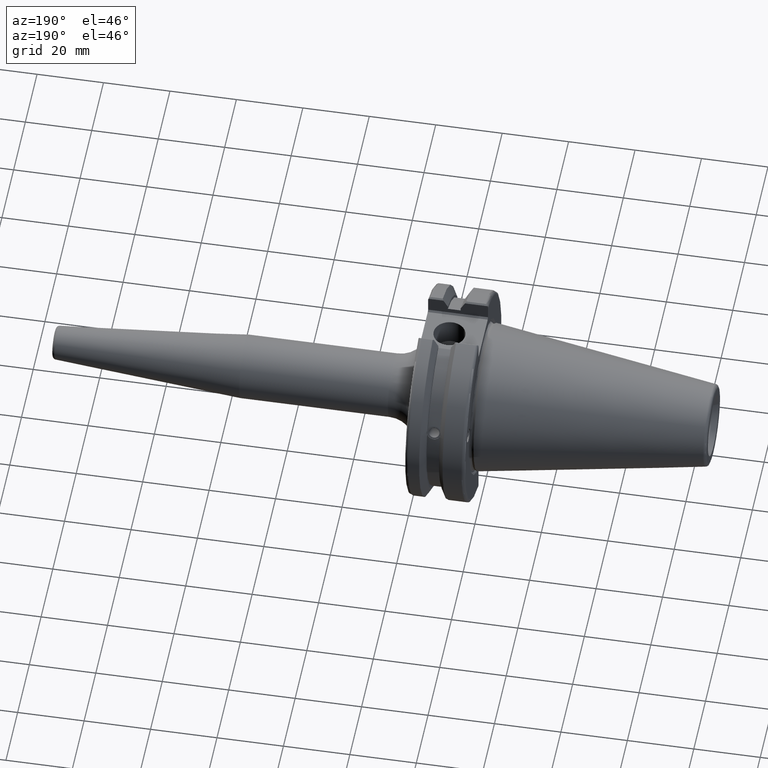
[diagram: clean part render]
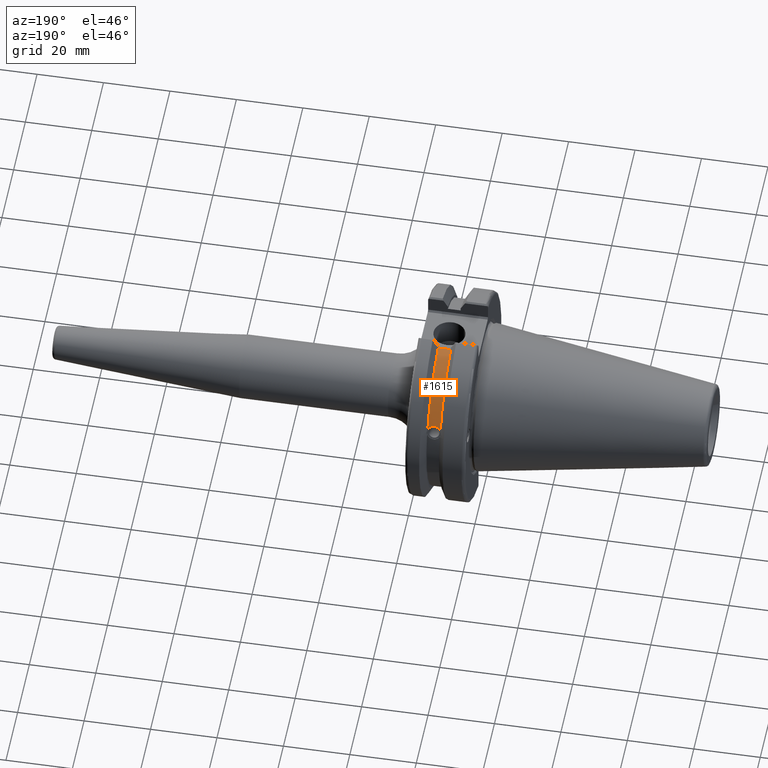
[diagram: same view with one face highlighted and labeled with its STEP entity id]
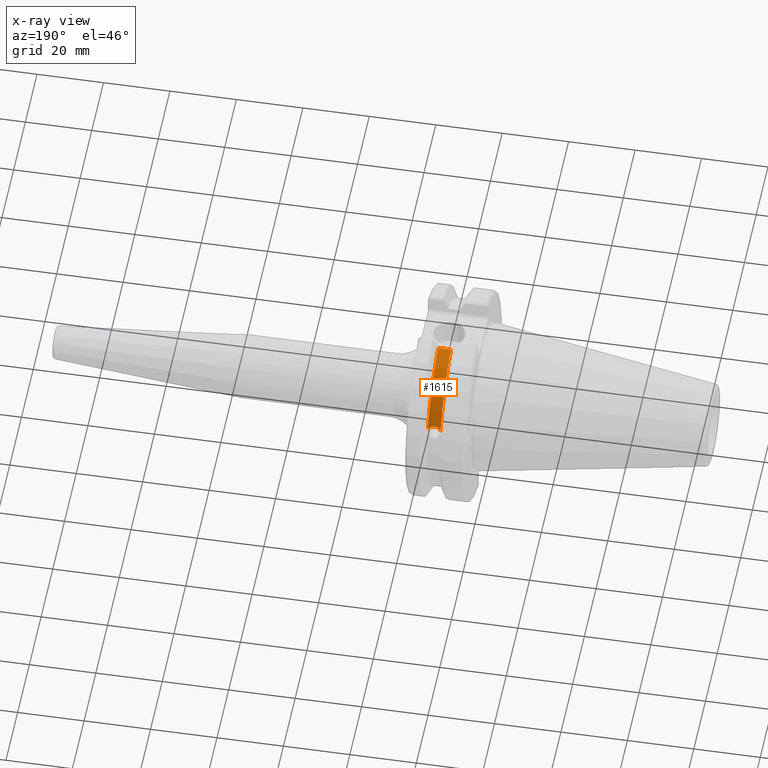
[diagram: x-ray of the same camera — body ghosted, the highlighted face saturated]
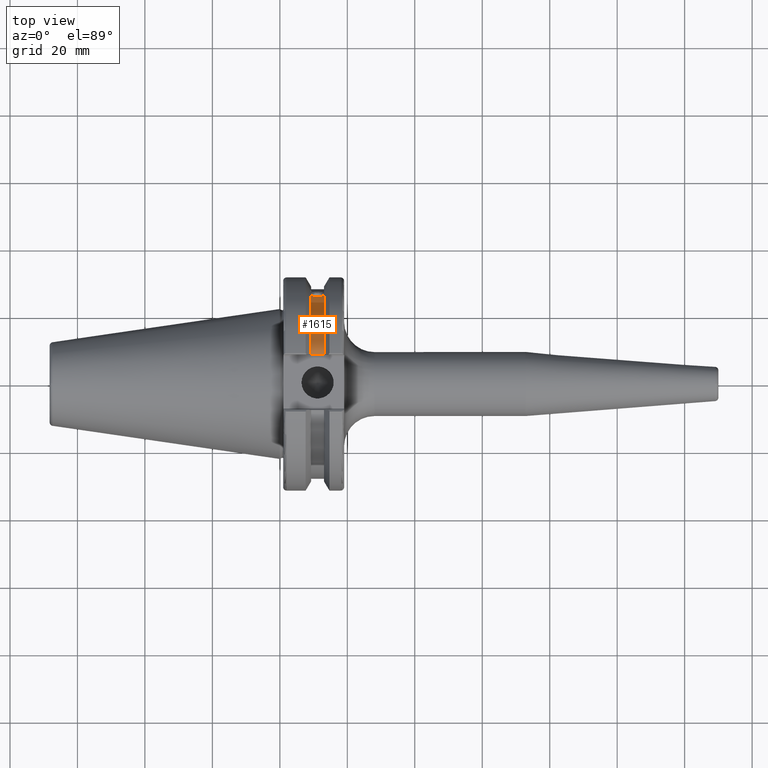
[diagram: same view with one face highlighted and labeled with its STEP entity id]
A machine part, auxiliary view. The second image highlights one B-rep face of the part: STEP entity #1615.
The next image is the same camera in x-ray: the body ghosted, the highlighted face saturated — about 0% of this face is hidden behind the body in this view.
A second angle (top view) of the same face is appended — the face is thin or edge-on in the first view.
In plain terms, the highlighted cylindrical surface (partial cylindrical patch) has radius 28.15 mm, axis along (1, 0, 0).
Its self-contained STEP definition (entity closure, byte-faithful):
#66=B_SPLINE_CURVE_WITH_KNOTS('',3,(#2698,#2699,#2700,#2701,#2702,#2703,
#2704,#2705,#2706,#2707,#2708,#2709,#2710,#2711,#2712),.UNSPECIFIED.,.F.,
 .F.,(4,2,2,3,2,2,4),(-0.231446873660084,-0.158271583089134,-0.0791357915445672,
0.,0.0791357915445672,0.158271583089134,0.231446873660465),
 .UNSPECIFIED.);
#185=LINE('',#3041,#283);
#283=VECTOR('',#2212,10.);
#321=CYLINDRICAL_SURFACE('',#1812,28.15);
#450=FACE_OUTER_BOUND('',#551,.T.);
#551=EDGE_LOOP('',(#1467,#1468,#1469,#1470));
#634=CIRCLE('',#1811,28.15);
#635=CIRCLE('',#1813,28.15);
#727=VERTEX_POINT('',#2695);
#728=VERTEX_POINT('',#2697);
#793=VERTEX_POINT('',#3038);
#794=VERTEX_POINT('',#3040);
#915=EDGE_CURVE('',#728,#727,#66,.T.);
#1016=EDGE_CURVE('',#794,#793,#185,.T.);
#1030=EDGE_CURVE('',#728,#793,#634,.T.);
#1031=EDGE_CURVE('',#727,#794,#635,.T.);
#1467=ORIENTED_EDGE('',*,*,#915,.T.);
#1468=ORIENTED_EDGE('',*,*,#1031,.T.);
#1469=ORIENTED_EDGE('',*,*,#1016,.T.);
#1470=ORIENTED_EDGE('',*,*,#1030,.F.);
#1615=ADVANCED_FACE('',(#450),#321,.T.);
#1811=AXIS2_PLACEMENT_3D('',#3072,#2251,#2252);
#1812=AXIS2_PLACEMENT_3D('',#3073,#2253,#2254);
#1813=AXIS2_PLACEMENT_3D('',#3074,#2255,#2256);
#2212=DIRECTION('',(1.,0.,0.));
#2251=DIRECTION('center_axis',(1.,0.,0.));
#2252=DIRECTION('ref_axis',(0.,0.,-1.));
#2253=DIRECTION('center_axis',(1.,0.,0.));
#2254=DIRECTION('ref_axis',(0.,1.,0.));
#2255=DIRECTION('center_axis',(1.,0.,0.));
#2256=DIRECTION('ref_axis',(0.,0.,-1.));
#2695=CARTESIAN_POINT('',(9.261,26.1451788594704,10.4332220529567));
#2697=CARTESIAN_POINT('',(13.091,26.1451788594704,10.4332220529567));
#2698=CARTESIAN_POINT('Ctrl Pts',(13.091,26.1451788594704,10.4332220529567));
#2699=CARTESIAN_POINT('Ctrl Pts',(12.9847694290343,26.0576536126147,10.6525563316815));
#2700=CARTESIAN_POINT('Ctrl Pts',(12.833279862294,25.9751489313128,10.8509873904882));
#2701=CARTESIAN_POINT('Ctrl Pts',(12.4745293734259,25.8346412777187,11.1816210830117));
#2702=CARTESIAN_POINT('Ctrl Pts',(12.2384549887012,25.7695111693635,11.3298867884858));
#2703=CARTESIAN_POINT('Ctrl Pts',(11.7210874573612,25.6822868299377,11.5262389251846));
#2704=CARTESIAN_POINT('Ctrl Pts',(11.4397859718152,25.6603958057616,11.5743935949859));
#2705=CARTESIAN_POINT('Ctrl Pts',(11.176,25.6603958057616,11.5743935949859));
#2706=CARTESIAN_POINT('Ctrl Pts',(10.9122140281848,25.6603958057616,11.5743935949859));
#2707=CARTESIAN_POINT('Ctrl Pts',(10.6309125426388,25.6822868299377,11.5262389251846));
#2708=CARTESIAN_POINT('Ctrl Pts',(10.1135450112988,25.7695111693635,11.3298867884858));
#2709=CARTESIAN_POINT('Ctrl Pts',(9.8774706265741,25.8346412777187,11.1816210830117));
#2710=CARTESIAN_POINT('Ctrl Pts',(9.5187201377051,25.9751489313131,10.8509873904873));
#2711=CARTESIAN_POINT('Ctrl Pts',(9.36723057097183,26.0576536126096,10.6525563316942));
#2712=CARTESIAN_POINT('Ctrl Pts',(9.261,26.1451788594704,10.4332220529567));
#3038=CARTESIAN_POINT('',(13.091,8.19,26.932255754021));
#3040=CARTESIAN_POINT('',(9.261,8.19,26.932255754021));
#3041=CARTESIAN_POINT('',(11.176,8.19,26.932255754021));
#3072=CARTESIAN_POINT('Origin',(13.091,0.,0.));
#3073=CARTESIAN_POINT('Origin',(11.176,0.,0.));
#3074=CARTESIAN_POINT('Origin',(9.261,0.,0.));